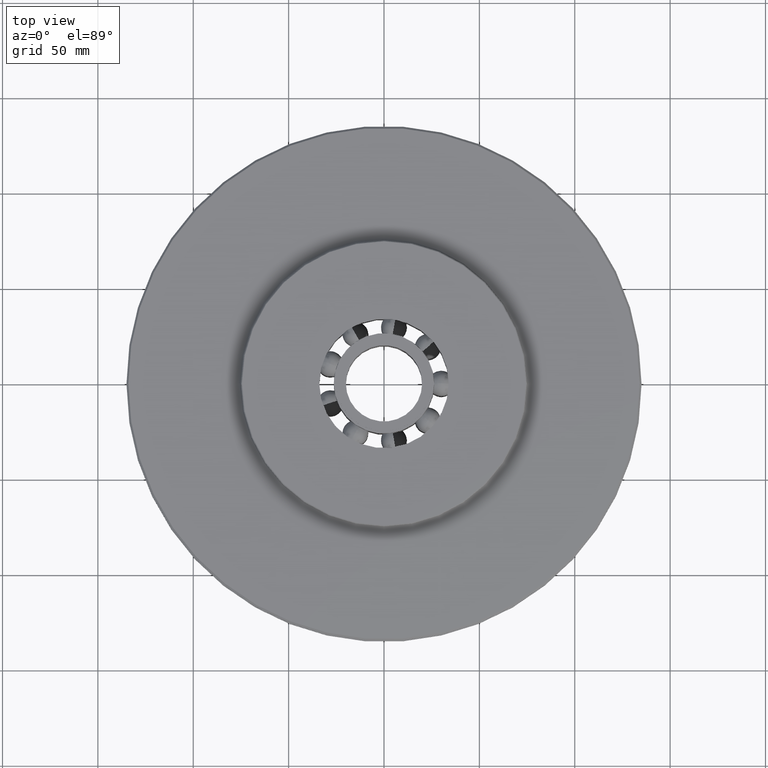
[diagram: clean part render]
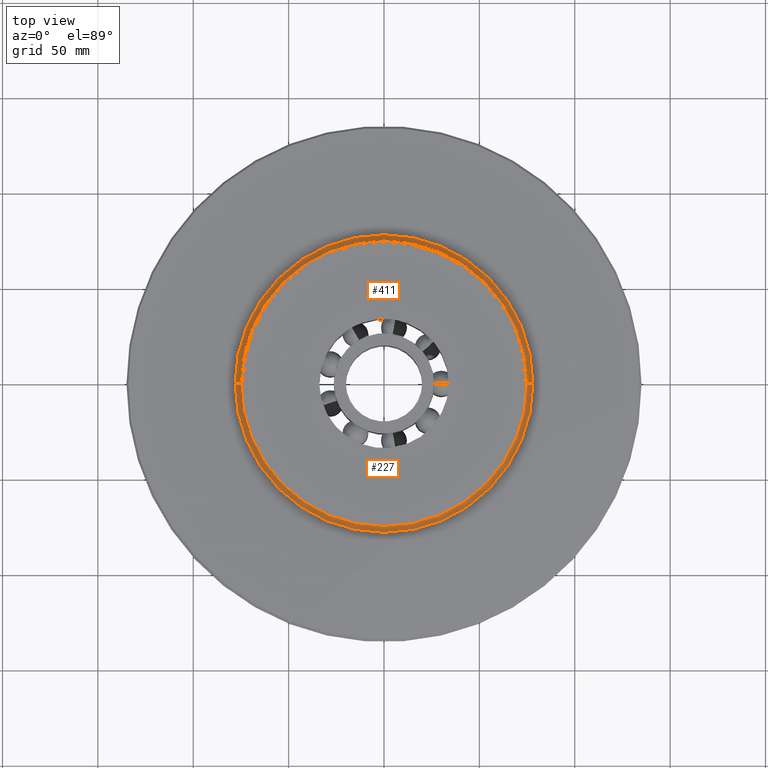
[diagram: same view with one multi-face feature highlighted, each face labeled with its STEP entity id]
A machine part, top view. The highlighted faces form ONE feature: a constant-radius fillet chain: 2 tangent blend faces with common blend radius 3 mm. The faces share edges in the B-rep.
Their STEP definitions:
[1] entity #227 (Torus):
#227=ADVANCED_FACE('',(#553),#554,.F.);
#553=FACE_OUTER_BOUND('',#1003,.T.);
#554=TOROIDAL_SURFACE('',#1004,78.0,3.00000000000003);
#1003=EDGE_LOOP('',(#1607,#1608,#1609,#1610));
#1004=AXIS2_PLACEMENT_3D('',#1611,#1612,#1613);
#1607=ORIENTED_EDGE('',*,*,#2966,.F.);
#1608=ORIENTED_EDGE('',*,*,#2967,.T.);
#1609=ORIENTED_EDGE('',*,*,#2968,.F.);
#1610=ORIENTED_EDGE('',*,*,#2969,.F.);
#1611=CARTESIAN_POINT('',(0.0,0.0,18.5));
#1612=DIRECTION('',(0.0,0.0,1.0));
#1613=DIRECTION('',(1.0,0.0,0.0));
#2966=EDGE_CURVE('',#3665,#3661,#3666,.T.);
#2967=EDGE_CURVE('',#3665,#3667,#3668,.T.);
#2968=EDGE_CURVE('',#3659,#3667,#3669,.T.);
#2969=EDGE_CURVE('',#3661,#3659,#3670,.T.);
#3659=VERTEX_POINT('',#6090);
#3661=VERTEX_POINT('',#6093);
#3665=VERTEX_POINT('',#6098);
#3666=CIRCLE('',#6099,3.00000000000003);
#3667=VERTEX_POINT('',#6100);
#3668=CIRCLE('',#6101,78.0);
#3669=CIRCLE('',#6102,3.00000000000003);
#3670=CIRCLE('',#6103,75.0);
#6090=CARTESIAN_POINT('',(75.0,0.0,18.5));
#6093=CARTESIAN_POINT('',(-75.0,9.18485099360515E-015,18.5));
#6098=CARTESIAN_POINT('',(-78.0,9.55224503334935E-015,15.5));
#6099=AXIS2_PLACEMENT_3D('',#10644,#10645,#10646);
#6100=CARTESIAN_POINT('',(78.0,0.0,15.5));
#6101=AXIS2_PLACEMENT_3D('',#10647,#10648,#10649);
#6102=AXIS2_PLACEMENT_3D('',#10650,#10651,#10652);
#6103=AXIS2_PLACEMENT_3D('',#10653,#10654,#10655);
#10644=CARTESIAN_POINT('',(-78.0,9.55224503334936E-015,18.5));
#10645=DIRECTION('',(-1.22464679914735E-016,-1.0,0.0));
#10646=DIRECTION('',(-1.0,1.22464679914735E-016,-0.0));
#10647=CARTESIAN_POINT('',(0.0,0.0,15.5));
#10648=DIRECTION('',(0.0,0.0,1.0));
#10649=DIRECTION('',(1.0,0.0,0.0));
#10650=CARTESIAN_POINT('',(78.0,-9.55224503334936E-015,18.5));
#10651=DIRECTION('',(-1.22464679914735E-016,-1.0,0.0));
#10652=DIRECTION('',(1.0,-1.22464679914735E-016,0.0));
#10653=CARTESIAN_POINT('',(0.0,0.0,18.5));
#10654=DIRECTION('',(0.0,0.0,1.0));
#10655=DIRECTION('',(1.0,0.0,0.0));
[2] entity #411 (Torus):
#411=ADVANCED_FACE('',(#854),#855,.F.);
#854=FACE_OUTER_BOUND('',#1304,.T.);
#855=TOROIDAL_SURFACE('',#1305,78.0,3.00000000000003);
#1304=EDGE_LOOP('',(#2703,#2704,#2705,#2706));
#1305=AXIS2_PLACEMENT_3D('',#2707,#2708,#2709);
#2703=ORIENTED_EDGE('',*,*,#2966,.T.);
#2704=ORIENTED_EDGE('',*,*,#2963,.F.);
#2705=ORIENTED_EDGE('',*,*,#2968,.T.);
#2706=ORIENTED_EDGE('',*,*,#3386,.T.);
#2707=CARTESIAN_POINT('',(0.0,0.0,18.5));
#2708=DIRECTION('',(0.0,0.0,1.0));
#2709=DIRECTION('',(1.0,0.0,0.0));
#2963=EDGE_CURVE('',#3659,#3661,#3662,.T.);
#2966=EDGE_CURVE('',#3665,#3661,#3666,.T.);
#2968=EDGE_CURVE('',#3659,#3667,#3669,.T.);
#3386=EDGE_CURVE('',#3667,#3665,#4291,.T.);
#3659=VERTEX_POINT('',#6090);
#3661=VERTEX_POINT('',#6093);
#3662=CIRCLE('',#6094,75.0);
#3665=VERTEX_POINT('',#6098);
#3666=CIRCLE('',#6099,3.00000000000003);
#3667=VERTEX_POINT('',#6100);
#3669=CIRCLE('',#6102,3.00000000000003);
#4291=CIRCLE('',#10406,78.0);
#6090=CARTESIAN_POINT('',(75.0,0.0,18.5));
#6093=CARTESIAN_POINT('',(-75.0,9.18485099360515E-015,18.5));
#6094=AXIS2_PLACEMENT_3D('',#10640,#10641,#10642);
#6098=CARTESIAN_POINT('',(-78.0,9.55224503334935E-015,15.5));
#6099=AXIS2_PLACEMENT_3D('',#10644,#10645,#10646);
#6100=CARTESIAN_POINT('',(78.0,0.0,15.5));
#6102=AXIS2_PLACEMENT_3D('',#10650,#10651,#10652);
#10406=AXIS2_PLACEMENT_3D('',#11089,#11090,#11091);
#10640=CARTESIAN_POINT('',(0.0,0.0,18.5));
#10641=DIRECTION('',(0.0,0.0,1.0));
#10642=DIRECTION('',(1.0,0.0,0.0));
#10644=CARTESIAN_POINT('',(-78.0,9.55224503334936E-015,18.5));
#10645=DIRECTION('',(-1.22464679914735E-016,-1.0,0.0));
#10646=DIRECTION('',(-1.0,1.22464679914735E-016,-0.0));
#10650=CARTESIAN_POINT('',(78.0,-9.55224503334936E-015,18.5));
#10651=DIRECTION('',(-1.22464679914735E-016,-1.0,0.0));
#10652=DIRECTION('',(1.0,-1.22464679914735E-016,0.0));
#11089=CARTESIAN_POINT('',(0.0,0.0,15.5));
#11090=DIRECTION('',(0.0,0.0,1.0));
#11091=DIRECTION('',(1.0,0.0,0.0));